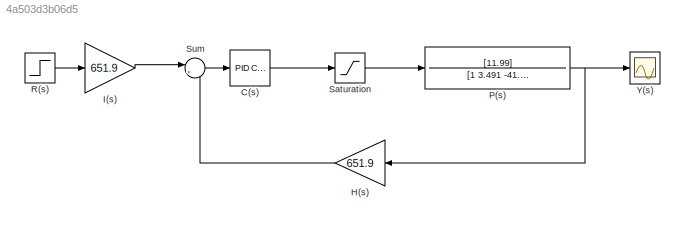
MODEL slx_4a503d3b06d5
KIND model
CONFIG AbsTol = 1e-6
CONFIG EnableMultiTasking = on
CONFIG FixedStep = 0.01
CONFIG MaxStep = 0.01
CONFIG MinStep = 0.0001
CONFIG RelTol = 1e-5
CONFIG SampleTimeConstraint = Unconstrained
CONFIG SolverName = VariableStepAuto
CONFIG StartTime = 0.0
CONFIG StopTime = 1
BLOCK [Reference] C(s)  REF=slpidlib/PID Controller
  Ports = [1, 1]
  SourceBlock = slpidlib/PID Controller
  SourceProductBaseCode = SL
  SourceType = PID 1dof
BLOCK [Gain] H(s)
  Gain = 651.9
BLOCK [Gain] I(s)
  Gain = 651.9
BLOCK [TransferFcn] P(s)
  Denominator = [1 3.491 -41.27]
  Numerator = [11.99]
BLOCK [Step] R(s)
  After = 0.2618
  Time = 0
BLOCK [Saturate] Saturation
  LowerLimit = -12
  UpperLimit = 12
BLOCK [Sum] Sum
  Inputs = |+-
  Ports = [2, 1]
BLOCK [Scope] Y(s)
  Floating = off
  NumInputPorts = 1
  Ports = [1]
  ScopeSpecificationString = Simulink.scopes.TimeScopeBlockCfg('CurrentConfiguration', extmgr.ConfigurationSet(extmgr.Configuration('Core','General UI',true),extmgr.Configuration('Core','Source UI',true),extmgr.Configuration('Sources','WiredSimulink',true),extmgr.Configuration('Visuals','Time Domain',true,'SerializedDisplays',{struct('MinYLimReal','0.00000','MaxYLimReal','0.31571','YLabelReal','','MinYLimMag','0.00000','MaxYL...<+1873ch>
LINE C(s):1 -> Saturation:1
LINE H(s):1 -> Sum:2
LINE I(s):1 -> Sum:1
NET P(s):1 -> H(s):1, Y(s):1
LINE R(s):1 -> I(s):1
LINE Saturation:1 -> P(s):1
LINE Sum:1 -> C(s):1
note: NET lines group one-source signal fan-out (src -> all destinations, sorted); 1:1 wires keep LINE
